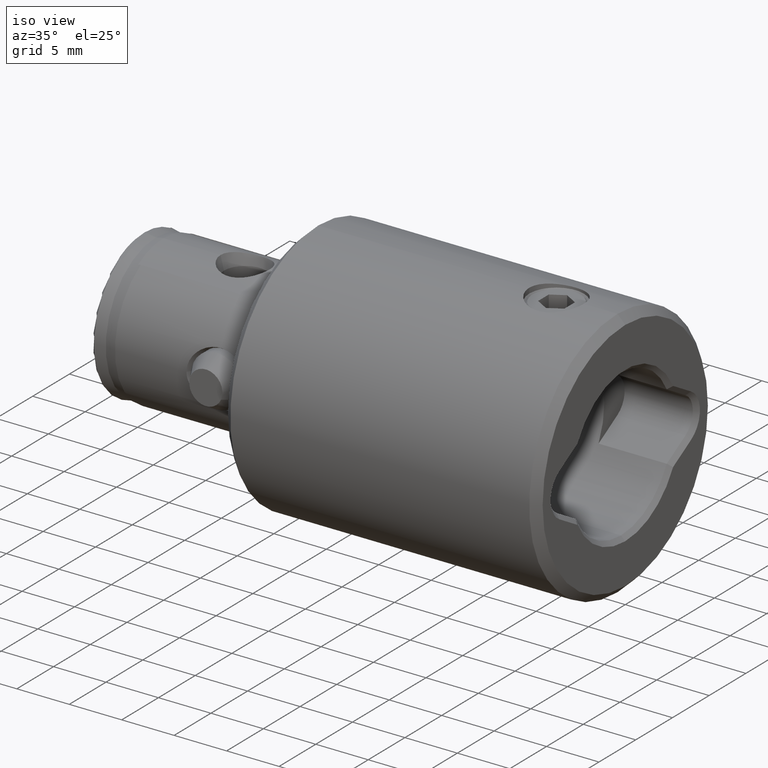
[diagram: clean part render]
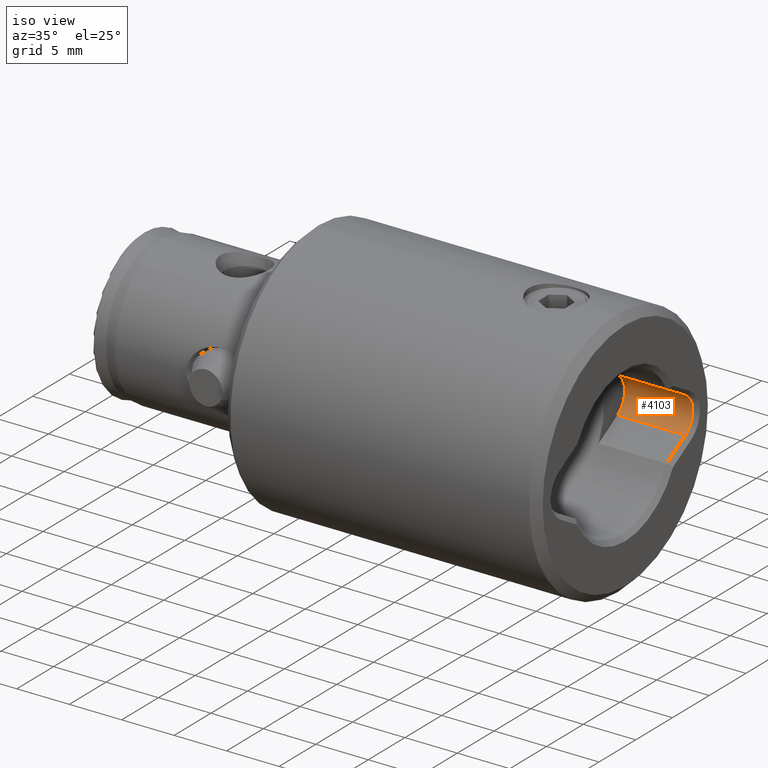
[diagram: same view with one face highlighted and labeled with its STEP entity id]
A machine part, iso view. The second image highlights one B-rep face of the part: STEP entity #4103.
In plain terms, the highlighted cylindrical surface (edge-blend (fillet) strip) has radius 2 mm, axis along (1, 0, 0).
Its self-contained STEP definition (entity closure, byte-faithful):
#144 = EDGE_CURVE ( 'NONE', #3518, #1383, #2507, .T. ) ;
#164 = CARTESIAN_POINT ( 'NONE',  ( -1.928818708657080100E-016, 7.775000000000000400, 6.900000000000000400 ) ) ;
#292 = CARTESIAN_POINT ( 'NONE',  ( -1.732050807568876300, 8.775000000000003900, 6.900000000000000400 ) ) ;
#328 = VERTEX_POINT ( 'NONE', #596 ) ;
#522 = LINE ( 'NONE', #3693, #3060 ) ;
#524 = CYLINDRICAL_SURFACE ( 'NONE', #2153, 2.000000000000000000 ) ;
#569 = CARTESIAN_POINT ( 'NONE',  ( 1.732050807568876300, 8.775000000000003900, 0.4000000000000019100 ) ) ;
#596 = CARTESIAN_POINT ( 'NONE',  ( -1.732050807568876300, 8.775000000000003900, 0.4000000000000019100 ) ) ;
#661 = EDGE_CURVE ( 'NONE', #328, #3688, #1268, .T. ) ;
#674 = ORIENTED_EDGE ( 'NONE', *, *, #3658, .F. ) ;
#998 = CARTESIAN_POINT ( 'NONE',  ( 1.732050807568876300, 8.775000000000003900, 6.900000000000000400 ) ) ;
#1121 = DIRECTION ( 'NONE',  ( -1.000000000000000000, 0.0000000000000000000, 0.0000000000000000000 ) ) ;
#1123 = AXIS2_PLACEMENT_3D ( 'NONE', #3305, #3275, #3260 ) ;
#1268 = CIRCLE ( 'NONE', #3699, 2.000000000000000000 ) ;
#1383 = VERTEX_POINT ( 'NONE', #998 ) ;
#1445 = EDGE_CURVE ( 'NONE', #3518, #328, #522, .T. ) ;
#1738 = DIRECTION ( 'NONE',  ( 0.0000000000000000000, 0.0000000000000000000, -1.000000000000000000 ) ) ;
#1761 = LINE ( 'NONE', #4155, #2532 ) ;
#2151 = DIRECTION ( 'NONE',  ( 0.0000000000000000000, 0.0000000000000000000, -1.000000000000000000 ) ) ;
#2153 = AXIS2_PLACEMENT_3D ( 'NONE', #164, #2151, #1121 ) ;
#2392 = FACE_OUTER_BOUND ( 'NONE', #2701, .T. ) ;
#2507 = CIRCLE ( 'NONE', #1123, 2.000000000000000000 ) ;
#2532 = VECTOR ( 'NONE', #2895, 1000.000000000000000 ) ;
#2701 = EDGE_LOOP ( 'NONE', ( #3262, #3967, #674, #2763 ) ) ;
#2763 = ORIENTED_EDGE ( 'NONE', *, *, #144, .F. ) ;
#2895 = DIRECTION ( 'NONE',  ( 0.0000000000000000000, 0.0000000000000000000, -1.000000000000000000 ) ) ;
#3060 = VECTOR ( 'NONE', #1738, 1000.000000000000000 ) ;
#3260 = DIRECTION ( 'NONE',  ( 1.000000000000000000, 0.0000000000000000000, 0.0000000000000000000 ) ) ;
#3262 = ORIENTED_EDGE ( 'NONE', *, *, #1445, .T. ) ;
#3275 = DIRECTION ( 'NONE',  ( 0.0000000000000000000, 0.0000000000000000000, -1.000000000000000000 ) ) ;
#3305 = CARTESIAN_POINT ( 'NONE',  ( -1.928818708657080100E-016, 7.775000000000000400, 6.900000000000000400 ) ) ;
#3514 = DIRECTION ( 'NONE',  ( 1.000000000000000000, 0.0000000000000000000, 0.0000000000000000000 ) ) ;
#3518 = VERTEX_POINT ( 'NONE', #292 ) ;
#3547 = DIRECTION ( 'NONE',  ( -0.0000000000000000000, -0.0000000000000000000, -1.000000000000000000 ) ) ;
#3616 = CARTESIAN_POINT ( 'NONE',  ( -1.928818708657070500E-016, 7.775000000000000400, 0.4000000000000001900 ) ) ;
#3658 = EDGE_CURVE ( 'NONE', #1383, #3688, #1761, .T. ) ;
#3688 = VERTEX_POINT ( 'NONE', #569 ) ;
#3693 = CARTESIAN_POINT ( 'NONE',  ( -1.732050807568876300, 8.775000000000003900, 6.900000000000000400 ) ) ;
#3699 = AXIS2_PLACEMENT_3D ( 'NONE', #3616, #3547, #3514 ) ;
#3967 = ORIENTED_EDGE ( 'NONE', *, *, #661, .T. ) ;
#4103 = ADVANCED_FACE ( 'NONE', ( #2392 ), #524, .F. ) ;
#4155 = CARTESIAN_POINT ( 'NONE',  ( 1.732050807568876300, 8.775000000000003900, 6.900000000000000400 ) ) ;